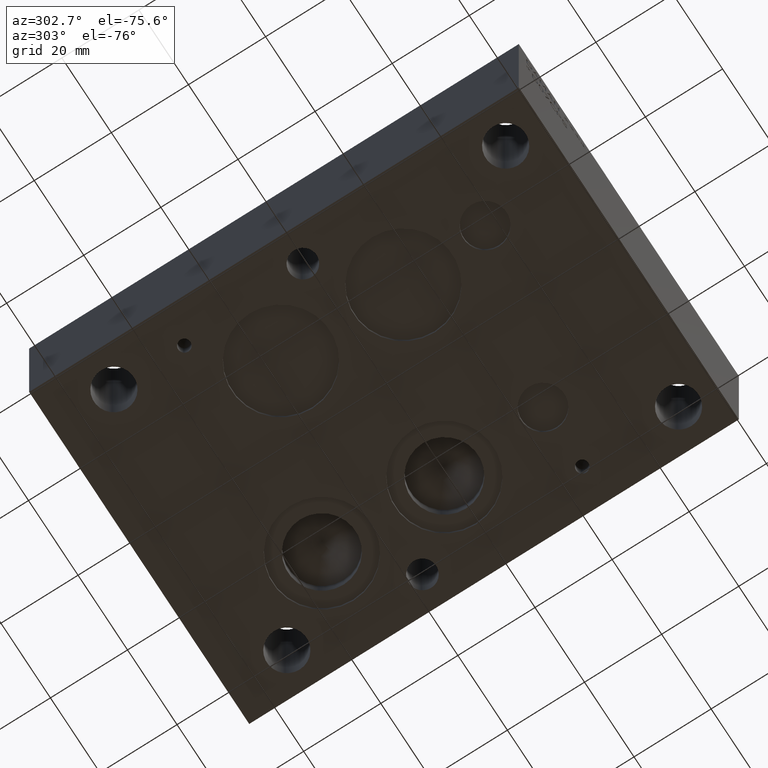
[diagram: clean part render]
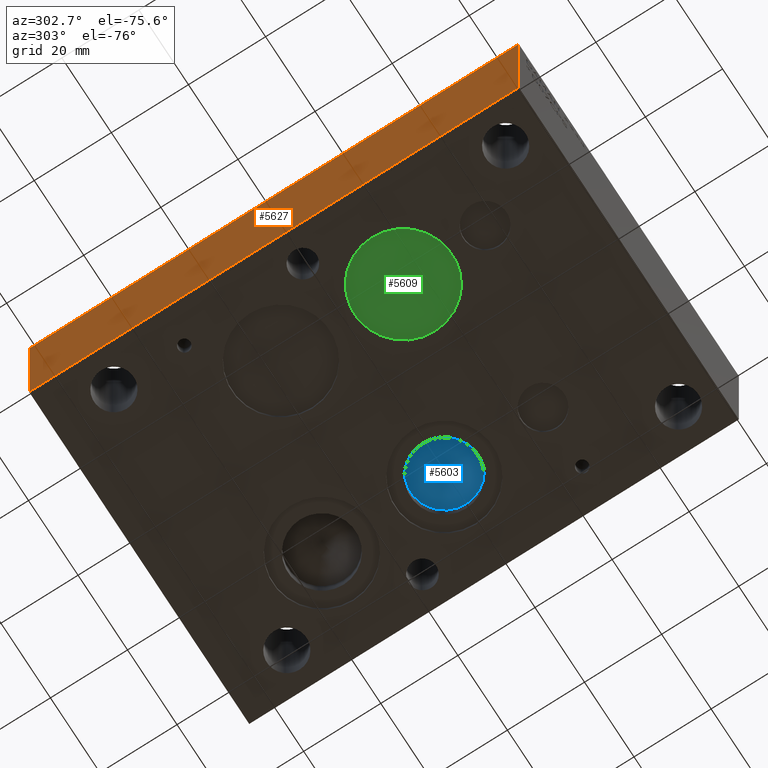
[diagram: same view with three faces highlighted in distinct colors, each labeled with its STEP entity id]
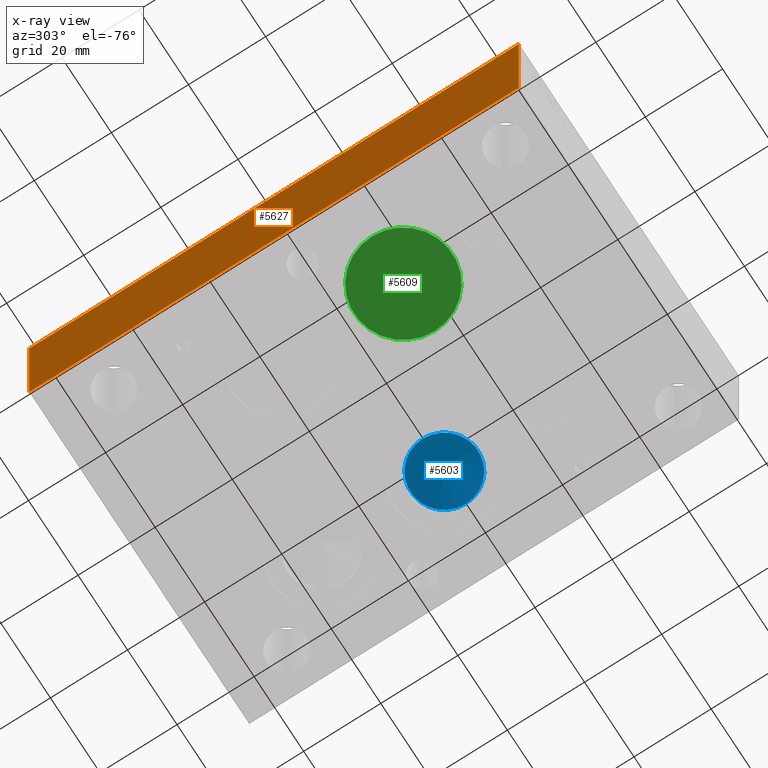
[diagram: x-ray of the same camera — body ghosted, the three highlighted faces saturated]
A machine part, auxiliary view with three faces highlighted in distinct colors.
The next image is the same camera in x-ray (body ghosted, the three faces saturated) — at least one of them is partly hidden behind the body in this view.
Their STEP definitions:

[orange] entity #5627 — the highlighted planar face has unit normal (-1, 0, 0).
#489=FACE_OUTER_BOUND('',#805,.T.);
#805=EDGE_LOOP('',(#5076,#5077,#5078,#5079));
#1410=LINE('',#9641,#2020);
#1433=LINE('',#9814,#2043);
#1434=LINE('',#9816,#2044);
#1435=LINE('',#9817,#2045);
#2020=VECTOR('',#6888,1.5);
#2043=VECTOR('',#7087,5.);
#2044=VECTOR('',#7088,1.5);
#2045=VECTOR('',#7089,5.);
#2664=VERTEX_POINT('',#9638);
#2665=VERTEX_POINT('',#9640);
#2727=VERTEX_POINT('',#9813);
#2728=VERTEX_POINT('',#9815);
#3446=EDGE_CURVE('',#2665,#2664,#1410,.T.);
#3525=EDGE_CURVE('',#2664,#2727,#1433,.T.);
#3526=EDGE_CURVE('',#2728,#2727,#1434,.T.);
#3527=EDGE_CURVE('',#2728,#2665,#1435,.T.);
#5076=ORIENTED_EDGE('',*,*,#3525,.T.);
#5077=ORIENTED_EDGE('',*,*,#3526,.F.);
#5078=ORIENTED_EDGE('',*,*,#3527,.T.);
#5079=ORIENTED_EDGE('',*,*,#3446,.T.);
#5335=PLANE('',#5927);
#5627=ADVANCED_FACE('',(#489),#5335,.T.);
#5927=AXIS2_PLACEMENT_3D('',#9812,#7085,#7086);
#6888=DIRECTION('',(0.,0.,1.));
#7085=DIRECTION('center_axis',(-1.,0.,0.));
#7086=DIRECTION('ref_axis',(0.,0.,1.));
#7087=DIRECTION('',(0.,1.,0.));
#7088=DIRECTION('',(0.,0.,1.));
#7089=DIRECTION('',(0.,-1.,0.));
#9638=CARTESIAN_POINT('',(0.,0.,1.5));
#9640=CARTESIAN_POINT('',(0.,0.,0.));
#9641=CARTESIAN_POINT('',(0.,0.,0.));
#9812=CARTESIAN_POINT('Origin',(0.,0.,0.));
#9813=CARTESIAN_POINT('',(0.,5.,1.5));
#9814=CARTESIAN_POINT('',(0.,0.,1.5));
#9815=CARTESIAN_POINT('',(0.,5.,0.));
#9816=CARTESIAN_POINT('',(0.,5.,0.));
#9817=CARTESIAN_POINT('',(0.,5.,0.));

[blue] entity #5603 — the highlighted conical surface has half-angle 60 deg.
#34=CIRCLE('',#5851,0.344);
#35=CIRCLE('',#5852,0.344);
#88=CONICAL_SURFACE('',#5850,0.172,1.04719755223275);
#465=FACE_OUTER_BOUND('',#779,.T.);
#779=EDGE_LOOP('',(#4967,#4968,#4969,#4970));
#1415=LINE('',#9664,#2025);
#2025=VECTOR('',#6915,0.172);
#2671=VERTEX_POINT('',#9662);
#2672=VERTEX_POINT('',#9663);
#2673=VERTEX_POINT('',#9665);
#3454=EDGE_CURVE('',#2671,#2672,#1415,.T.);
#3455=EDGE_CURVE('',#2672,#2673,#34,.T.);
#3456=EDGE_CURVE('',#2673,#2672,#35,.T.);
#4967=ORIENTED_EDGE('',*,*,#3454,.T.);
#4968=ORIENTED_EDGE('',*,*,#3455,.T.);
#4969=ORIENTED_EDGE('',*,*,#3456,.T.);
#4970=ORIENTED_EDGE('',*,*,#3454,.F.);
#5603=ADVANCED_FACE('',(#465),#88,.F.);
#5850=AXIS2_PLACEMENT_3D('',#9661,#6913,#6914);
#5851=AXIS2_PLACEMENT_3D('',#9666,#6916,#6917);
#5852=AXIS2_PLACEMENT_3D('',#9667,#6918,#6919);
#6913=DIRECTION('center_axis',(0.,0.,-1.));
#6914=DIRECTION('ref_axis',(1.,0.,0.));
#6915=DIRECTION('',(-0.866025404302513,1.06057523935937E-16,-0.499999999102668));
#6916=DIRECTION('center_axis',(0.,0.,-1.));
#6917=DIRECTION('ref_axis',(1.,0.,0.));
#6918=DIRECTION('center_axis',(0.,0.,-1.));
#6919=DIRECTION('ref_axis',(1.,0.,0.));
#9661=CARTESIAN_POINT('Origin',(2.563,2.406,0.297912738188976));
#9662=CARTESIAN_POINT('',(2.563,2.406,0.397216984251969));
#9663=CARTESIAN_POINT('',(2.219,2.406,0.198608492125984));
#9664=CARTESIAN_POINT('',(2.391,2.406,0.297912738188976));
#9665=CARTESIAN_POINT('',(2.907,2.406,0.198608492125984));
#9666=CARTESIAN_POINT('Origin',(2.563,2.406,0.198608492125984));
#9667=CARTESIAN_POINT('Origin',(2.563,2.406,0.198608492125984));

[green] entity #5609 — the highlighted planar face has unit normal (0, 0, 1).
#45=CIRCLE('',#5868,0.5);
#46=CIRCLE('',#5869,0.5);
#471=FACE_OUTER_BOUND('',#785,.T.);
#785=EDGE_LOOP('',(#4992,#4993));
#2683=VERTEX_POINT('',#9695);
#2684=VERTEX_POINT('',#9696);
#3469=EDGE_CURVE('',#2683,#2684,#45,.T.);
#3470=EDGE_CURVE('',#2684,#2683,#46,.T.);
#4992=ORIENTED_EDGE('',*,*,#3469,.T.);
#4993=ORIENTED_EDGE('',*,*,#3470,.T.);
#5331=PLANE('',#5867);
#5609=ADVANCED_FACE('',(#471),#5331,.F.);
#5867=AXIS2_PLACEMENT_3D('',#9694,#6951,#6952);
#5868=AXIS2_PLACEMENT_3D('',#9697,#6953,#6954);
#5869=AXIS2_PLACEMENT_3D('',#9698,#6955,#6956);
#6951=DIRECTION('center_axis',(0.,0.,1.));
#6952=DIRECTION('ref_axis',(1.,0.,0.));
#6953=DIRECTION('center_axis',(0.,0.,-1.));
#6954=DIRECTION('ref_axis',(1.,0.,0.));
#6955=DIRECTION('center_axis',(0.,0.,-1.));
#6956=DIRECTION('ref_axis',(1.,0.,0.));
#9694=CARTESIAN_POINT('Origin',(1.188,1.781,0.04));
#9695=CARTESIAN_POINT('',(1.438,1.781,0.04));
#9696=CARTESIAN_POINT('',(0.438,1.781,0.04));
#9697=CARTESIAN_POINT('Origin',(0.938,1.781,0.04));
#9698=CARTESIAN_POINT('Origin',(0.938,1.781,0.04));